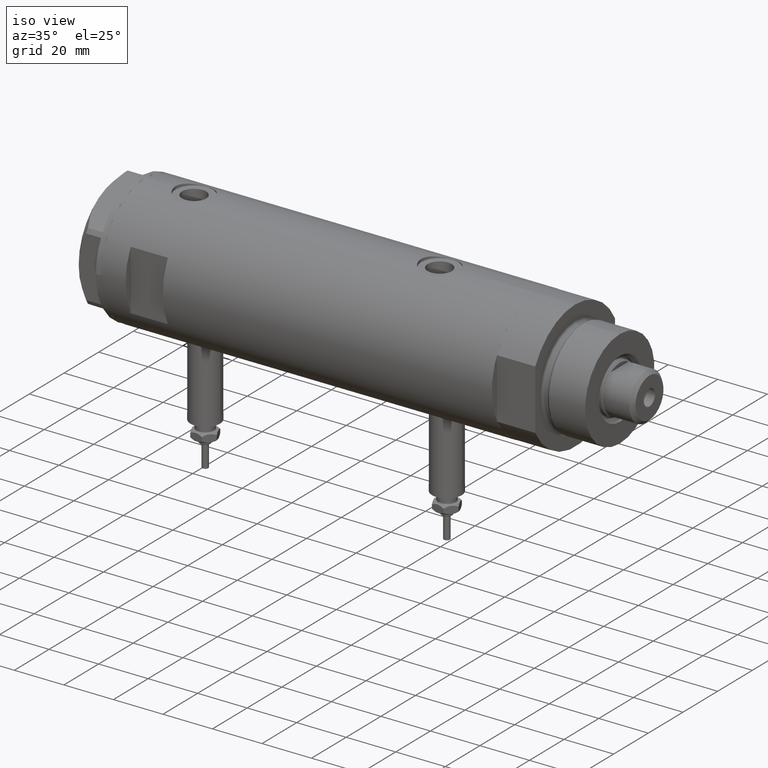
[diagram: clean part render]
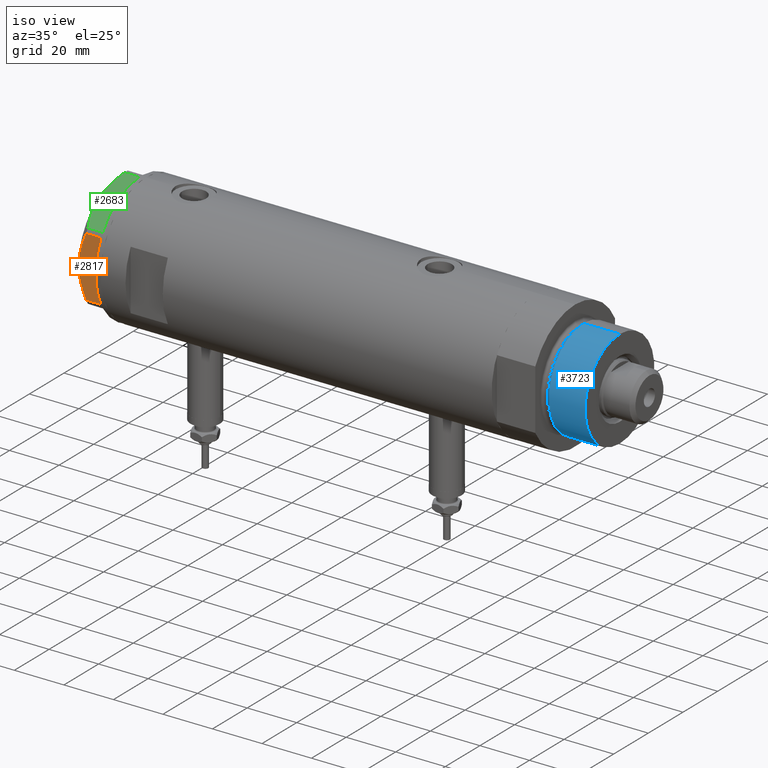
[diagram: same view with three faces highlighted in distinct colors, each labeled with its STEP entity id]
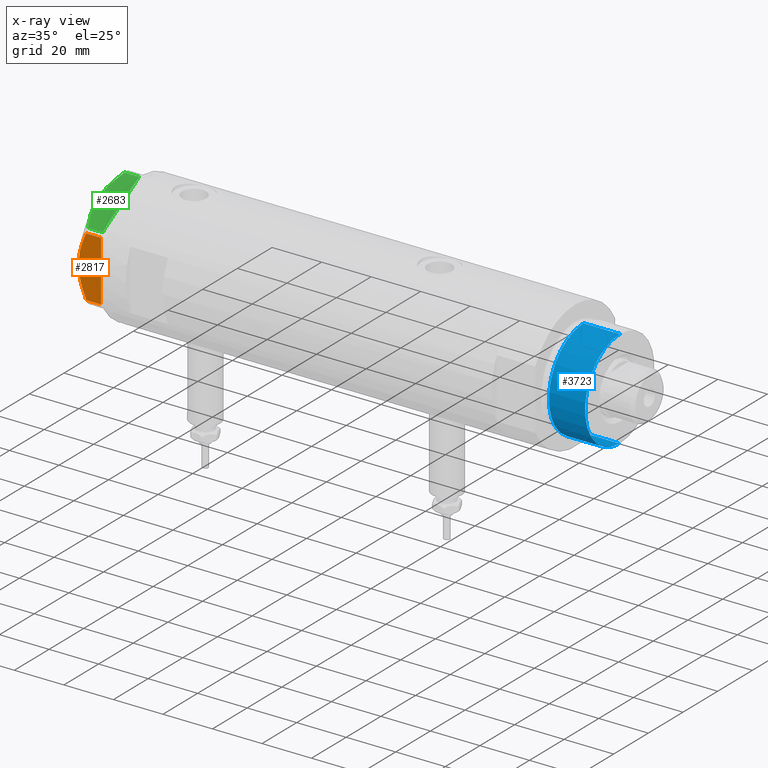
[diagram: x-ray of the same camera — body ghosted, the three highlighted faces saturated]
A machine part, iso view with three faces highlighted in distinct colors.
The next image is the same camera in x-ray (body ghosted, the three faces saturated) — at least one of them is partly hidden behind the body in this view.
Their STEP definitions:

[orange] entity #2817 — the highlighted planar face has unit normal (-0, 1, -0).
#97 = CARTESIAN_POINT ( 'NONE',  ( -23.00000000000004619, -8.112498833180673323E-14, 9.000000000000000000 ) ) ;
#107 = PLANE ( 'NONE',  #1199 ) ;
#333 = CARTESIAN_POINT ( 'NONE',  ( -22.99999999999991118, -10.22738952213794761, 6.832470313674783746 ) ) ;
#401 = CARTESIAN_POINT ( 'NONE',  ( -22.99999999999993960, -2.643615312305158671, 8.854304560636265364 ) ) ;
#437 = EDGE_CURVE ( 'NONE', #5733, #2369, #1512, .T. ) ;
#542 = B_SPLINE_CURVE_WITH_KNOTS ( 'NONE', 3,
 ( #5841, #1806, #2772, #2316, #401, #4841, #4744, #1936, #6289, #1456, #333, #2354, #916, #5731 ),
 .UNSPECIFIED., .F., .F.,
 ( 4, 2, 2, 2, 2, 2, 4 ),
 ( 0.04777139595992690307, 0.04934380568070229761, 0.05091621540147769215, 0.05406103484302848122, 0.05720585428457927030, 0.05877826400535466483, 0.06035067372613005937 ),
 .UNSPECIFIED. ) ;
#593 = CARTESIAN_POINT ( 'NONE',  ( -22.99999999999999289, 12.15905619136133176, 5.983800287807616414 ) ) ;
#594 = CARTESIAN_POINT ( 'NONE',  ( -22.99999999999996803, 7.239756182922199024, 7.892186063422847120 ) ) ;
#626 = ORIENTED_EDGE ( 'NONE', *, *, #437, .T. ) ;
#698 = CARTESIAN_POINT ( 'NONE',  ( -22.99999999999999645, 13.27905619136132032, 9.000000000000000000 ) ) ;
#863 = CARTESIAN_POINT ( 'NONE',  ( -22.99999999999999289, 12.15905619136133176, 0.000000000000000000 ) ) ;
#916 = CARTESIAN_POINT ( 'NONE',  ( -22.99999999999990763, -11.68282849742335827, 6.206372352695425754 ) ) ;
#931 = CARTESIAN_POINT ( 'NONE',  ( -22.99999999999990763, -12.15905619136147564, 5.983800287807627072 ) ) ;
#1018 = CARTESIAN_POINT ( 'NONE',  ( -22.99999999999998224, 8.246028007352361300, 7.571131808646907935 ) ) ;
#1199 = AXIS2_PLACEMENT_3D ( 'NONE', #698, #2655, #4624 ) ;
#1207 = LINE ( 'NONE', #3164, #3452 ) ;
#1244 = DIRECTION ( 'NONE',  ( 0.000000000000000000, 0.000000000000000000, 1.000000000000000000 ) ) ;
#1456 = CARTESIAN_POINT ( 'NONE',  ( -22.99999999999991829, -9.734726261263297431, 7.028924700095662281 ) ) ;
#1477 = CARTESIAN_POINT ( 'NONE',  ( -22.99999999999999645, 13.27905619136132032, 0.000000000000000000 ) ) ;
#1512 = LINE ( 'NONE', #1477, #4887 ) ;
#1530 = CARTESIAN_POINT ( 'NONE',  ( -22.99999999999995381, 2.122900714018063795, 9.000000000000092371 ) ) ;
#1593 = FACE_OUTER_BOUND ( 'NONE', #1597, .T. ) ;
#1597 = EDGE_LOOP ( 'NONE', ( #1635, #2732, #3495, #626, #3661, #3507, #4244 ) ) ;
#1635 = ORIENTED_EDGE ( 'NONE', *, *, #1905, .F. ) ;
#1806 = CARTESIAN_POINT ( 'NONE',  ( -22.99999999999995737, -0.5295934231897764244, 9.000000000000092371 ) ) ;
#1905 = EDGE_CURVE ( 'NONE', #6066, #2083, #5207, .T. ) ;
#1936 = CARTESIAN_POINT ( 'NONE',  ( -22.99999999999992184, -7.253003311474388148, 7.903276810347638737 ) ) ;
#1947 = DIRECTION ( 'NONE',  ( 3.527173405730720141E-15, -1.000000000000000000, 0.000000000000000000 ) ) ;
#2083 = VERTEX_POINT ( 'NONE', #2581 ) ;
#2122 = CARTESIAN_POINT ( 'NONE',  ( -22.99999999999997513, 8.748091966971378142, 7.396818978284571244 ) ) ;
#2192 = CARTESIAN_POINT ( 'NONE',  ( -22.99999999999990763, -12.15905619136147386, 9.000000000000000000 ) ) ;
#2316 = CARTESIAN_POINT ( 'NONE',  ( -22.99999999999993960, -2.119709279061923191, 8.908535212173198659 ) ) ;
#2354 = CARTESIAN_POINT ( 'NONE',  ( -22.99999999999991118, -11.20155944044816287, 6.421102682632757741 ) ) ;
#2369 = VERTEX_POINT ( 'NONE', #5414 ) ;
#2486 = CARTESIAN_POINT ( 'NONE',  ( -22.99999999999998934, 11.20825071633916359, 6.428173306378450746 ) ) ;
#2554 = CARTESIAN_POINT ( 'NONE',  ( -22.99999999999997158, 6.734330413511419700, 8.039389741252668031 ) ) ;
#2581 = CARTESIAN_POINT ( 'NONE',  ( -23.00000000000004619, -8.112498833180673323E-14, 9.000000000000000000 ) ) ;
#2655 = DIRECTION ( 'NONE',  ( 1.000000000000000000, 3.527173405730720141E-15, -0.000000000000000000 ) ) ;
#2676 = LINE ( 'NONE', #2192, #2852 ) ;
#2732 = ORIENTED_EDGE ( 'NONE', *, *, #3615, .T. ) ;
#2772 = CARTESIAN_POINT ( 'NONE',  ( -22.99999999999995026, -1.063773509315737442, 8.981438083606830602 ) ) ;
#2817 = ADVANCED_FACE ( 'NONE', ( #1593 ), #107, .F. ) ;
#2838 = VECTOR ( 'NONE', #1947, 1000.000000000000000 ) ;
#2852 = VECTOR ( 'NONE', #1244, 1000.000000000000000 ) ;
#2879 = DIRECTION ( 'NONE',  ( 3.527173405730720141E-15, -1.000000000000000000, 0.000000000000000000 ) ) ;
#3061 = EDGE_CURVE ( 'NONE', #2369, #5980, #3904, .T. ) ;
#3142 = VECTOR ( 'NONE', #2879, 1000.000000000000000 ) ;
#3164 = CARTESIAN_POINT ( 'NONE',  ( -22.99999999999999289, 12.15905619136133176, 9.000000000000000000 ) ) ;
#3310 = EDGE_CURVE ( 'NONE', #4389, #5733, #6244, .T. ) ;
#3452 = VECTOR ( 'NONE', #6106, 1000.000000000000000 ) ;
#3455 = CARTESIAN_POINT ( 'NONE',  ( -22.99999999999999645, 13.27905619136132032, 0.000000000000000000 ) ) ;
#3495 = ORIENTED_EDGE ( 'NONE', *, *, #3310, .T. ) ;
#3507 = ORIENTED_EDGE ( 'NONE', *, *, #4659, .T. ) ;
#3615 = EDGE_CURVE ( 'NONE', #6066, #4389, #1207, .T. ) ;
#3661 = ORIENTED_EDGE ( 'NONE', *, *, #3061, .T. ) ;
#3868 = CARTESIAN_POINT ( 'NONE',  ( -22.99999999999999289, 12.15905619136133176, 5.983800287807616414 ) ) ;
#3904 = LINE ( 'NONE', #3455, #2838 ) ;
#4024 = CARTESIAN_POINT ( 'NONE',  ( -22.99999999999998579, 10.23890159976122050, 6.840812428290914404 ) ) ;
#4244 = ORIENTED_EDGE ( 'NONE', *, *, #6315, .F. ) ;
#4389 = VERTEX_POINT ( 'NONE', #863 ) ;
#4446 = VERTEX_POINT ( 'NONE', #931 ) ;
#4624 = DIRECTION ( 'NONE',  ( -3.527173405730720141E-15, 1.000000000000000000, 0.000000000000000000 ) ) ;
#4659 = EDGE_CURVE ( 'NONE', #5980, #4446, #2676, .T. ) ;
#4744 = CARTESIAN_POINT ( 'NONE',  ( -22.99999999999992895, -5.228918809624124364, 8.433337033849854336 ) ) ;
#4841 = CARTESIAN_POINT ( 'NONE',  ( -22.99999999999993250, -4.203926054641964782, 8.641681223122507305 ) ) ;
#4887 = VECTOR ( 'NONE', #5532, 1000.000000000000000 ) ;
#4970 = CARTESIAN_POINT ( 'NONE',  ( -22.99999999999996803, 4.194757081058972936, 8.703000351525203016 ) ) ;
#5207 = B_SPLINE_CURVE_WITH_KNOTS ( 'NONE', 3,
 ( #3868, #2486, #4024, #2122, #1018, #594, #2554, #4970, #1530, #97 ),
 .UNSPECIFIED., .F., .F.,
 ( 4, 2, 2, 2, 4 ),
 ( 0.03516523594057416324, 0.03831677594541234300, 0.03989254594783143981, 0.04146831595025052969, 0.04777139595992690307 ),
 .UNSPECIFIED. ) ;
#5326 = CARTESIAN_POINT ( 'NONE',  ( -22.99999999999990763, -12.15905619136147386, 0.000000000000000000 ) ) ;
#5414 = CARTESIAN_POINT ( 'NONE',  ( -22.99999999999990763, -12.12435565298232021, 0.000000000000000000 ) ) ;
#5532 = DIRECTION ( 'NONE',  ( 3.527173405730720141E-15, -1.000000000000000000, 0.000000000000000000 ) ) ;
#5702 = CARTESIAN_POINT ( 'NONE',  ( -22.99999999999999289, 12.12435565298215856, 0.000000000000000000 ) ) ;
#5731 = CARTESIAN_POINT ( 'NONE',  ( -22.99999999999990763, -12.15905619136147564, 5.983800287807627072 ) ) ;
#5733 = VERTEX_POINT ( 'NONE', #5702 ) ;
#5745 = CARTESIAN_POINT ( 'NONE',  ( -22.99999999999999645, 13.27905619136132032, 0.000000000000000000 ) ) ;
#5841 = CARTESIAN_POINT ( 'NONE',  ( -23.00000000000004619, -8.112498833180673323E-14, 9.000000000000000000 ) ) ;
#5980 = VERTEX_POINT ( 'NONE', #5326 ) ;
#6066 = VERTEX_POINT ( 'NONE', #593 ) ;
#6106 = DIRECTION ( 'NONE',  ( 0.000000000000000000, 0.000000000000000000, -1.000000000000000000 ) ) ;
#6244 = LINE ( 'NONE', #5745, #3142 ) ;
#6289 = CARTESIAN_POINT ( 'NONE',  ( -22.99999999999991829, -8.252113629125268801, 7.581642062680223226 ) ) ;
#6315 = EDGE_CURVE ( 'NONE', #2083, #4446, #542, .T. ) ;

[blue] entity #3723 — the highlighted cylindrical surface (partial cylindrical patch) has radius 20 mm, axis along (-1, -0, 0).
#153 = CARTESIAN_POINT ( 'NONE',  ( -19.99999999999999645, 0.000000000000000000, 33.50000000000000000 ) ) ;
#163 = CIRCLE ( 'NONE', #363, 19.99999999999999645 ) ;
#275 = CARTESIAN_POINT ( 'NONE',  ( -19.99999999999999645, 0.000000000000000000, 18.87384048104053846 ) ) ;
#363 = AXIS2_PLACEMENT_3D ( 'NONE', #6263, #5763, #4773 ) ;
#404 = EDGE_LOOP ( 'NONE', ( #4320, #1611, #5549, #4557 ) ) ;
#946 = DIRECTION ( 'NONE',  ( -0.000000000000000000, -0.000000000000000000, -1.000000000000000000 ) ) ;
#1063 = DIRECTION ( 'NONE',  ( -1.000000000000000000, 0.000000000000000000, 0.000000000000000000 ) ) ;
#1083 = EDGE_CURVE ( 'NONE', #4534, #2527, #3742, .T. ) ;
#1283 = DIRECTION ( 'NONE',  ( -0.000000000000000000, -0.000000000000000000, -1.000000000000000000 ) ) ;
#1299 = AXIS2_PLACEMENT_3D ( 'NONE', #5084, #3085, #1063 ) ;
#1359 = EDGE_CURVE ( 'NONE', #2527, #4770, #5210, .T. ) ;
#1611 = ORIENTED_EDGE ( 'NONE', *, *, #1083, .F. ) ;
#2023 = FACE_OUTER_BOUND ( 'NONE', #404, .T. ) ;
#2245 = CARTESIAN_POINT ( 'NONE',  ( 19.99999999999999645, 2.449293598294706119E-15, 33.50000000000000000 ) ) ;
#2261 = EDGE_CURVE ( 'NONE', #3616, #4770, #163, .T. ) ;
#2307 = EDGE_CURVE ( 'NONE', #4534, #3616, #5351, .T. ) ;
#2318 = CARTESIAN_POINT ( 'NONE',  ( -19.99999999999999645, 0.000000000000000000, 33.50000000000000000 ) ) ;
#2527 = VERTEX_POINT ( 'NONE', #3716 ) ;
#2615 = DIRECTION ( 'NONE',  ( 1.000000000000000000, 0.000000000000000000, 0.000000000000000000 ) ) ;
#3085 = DIRECTION ( 'NONE',  ( -0.000000000000000000, -0.000000000000000000, -1.000000000000000000 ) ) ;
#3134 = VECTOR ( 'NONE', #1283, 1000.000000000000000 ) ;
#3616 = VERTEX_POINT ( 'NONE', #275 ) ;
#3679 = DIRECTION ( 'NONE',  ( 0.000000000000000000, 0.000000000000000000, 1.000000000000000000 ) ) ;
#3716 = CARTESIAN_POINT ( 'NONE',  ( 19.99999999999999645, 2.449293598294706119E-15, 33.50000000000000000 ) ) ;
#3723 = ADVANCED_FACE ( 'NONE', ( #2023 ), #5966, .T. ) ;
#3742 = CIRCLE ( 'NONE', #4373, 19.99999999999999645 ) ;
#4320 = ORIENTED_EDGE ( 'NONE', *, *, #1359, .F. ) ;
#4373 = AXIS2_PLACEMENT_3D ( 'NONE', #5673, #3679, #2615 ) ;
#4534 = VERTEX_POINT ( 'NONE', #153 ) ;
#4557 = ORIENTED_EDGE ( 'NONE', *, *, #2261, .T. ) ;
#4770 = VERTEX_POINT ( 'NONE', #5767 ) ;
#4773 = DIRECTION ( 'NONE',  ( 1.000000000000000000, 0.000000000000000000, 0.000000000000000000 ) ) ;
#5084 = CARTESIAN_POINT ( 'NONE',  ( 0.000000000000000000, 0.000000000000000000, 33.50000000000000000 ) ) ;
#5210 = LINE ( 'NONE', #2245, #3134 ) ;
#5351 = LINE ( 'NONE', #2318, #6193 ) ;
#5549 = ORIENTED_EDGE ( 'NONE', *, *, #2307, .T. ) ;
#5673 = CARTESIAN_POINT ( 'NONE',  ( 0.000000000000000000, 0.000000000000000000, 33.50000000000000000 ) ) ;
#5763 = DIRECTION ( 'NONE',  ( -0.000000000000000000, -0.000000000000000000, 1.000000000000000000 ) ) ;
#5767 = CARTESIAN_POINT ( 'NONE',  ( 19.99999999999999645, 2.449293598294706119E-15, 18.87384048104053846 ) ) ;
#5966 = CYLINDRICAL_SURFACE ( 'NONE', #1299, 19.99999999999999645 ) ;
#6193 = VECTOR ( 'NONE', #946, 1000.000000000000000 ) ;
#6263 = CARTESIAN_POINT ( 'NONE',  ( 0.000000000000000000, 0.000000000000000000, 18.87384048104053846 ) ) ;

[green] entity #2683 — the highlighted planar face has unit normal (-0, 0.5, -0.866).
#33 = CARTESIAN_POINT ( 'NONE',  ( -21.99999999999998224, -13.85640646055105485, 0.000000000000000000 ) ) ;
#34 = EDGE_CURVE ( 'NONE', #2530, #5160, #1931, .T. ) ;
#86 = CARTESIAN_POINT ( 'NONE',  ( -2.640413878808339110, -25.03366871902064261, 6.844201024439214187 ) ) ;
#229 = CARTESIAN_POINT ( 'NONE',  ( -22.99999999999990408, -13.27905619136147841, 0.000000000000000000 ) ) ;
#288 = LINE ( 'NONE', #2208, #2408 ) ;
#306 = EDGE_LOOP ( 'NONE', ( #2258, #4163, #3194, #6041, #4706, #4161, #683 ) ) ;
#402 = B_SPLINE_CURVE_WITH_KNOTS ( 'NONE', 3,
 ( #3191, #1647, #3603, #1675, #6137, #5572, #1169, #3123, #5094, #3633 ),
 .UNSPECIFIED., .F., .F.,
 ( 4, 2, 2, 2, 4 ),
 ( 0.001228959670438514989, 0.007497079744270818830, 0.01063113978118697227, 0.01219816979964504812, 0.01376519981810312397 ),
 .UNSPECIFIED. ) ;
#521 = CARTESIAN_POINT ( 'NONE',  ( -5.671686373603866294, -23.28356272816335348, 8.040681765829727823 ) ) ;
#549 = CARTESIAN_POINT ( 'NONE',  ( -4.357207709417335373, -24.04247733877546267, 7.570552255230290406 ) ) ;
#611 = EDGE_CURVE ( 'NONE', #5477, #2238, #288, .T. ) ;
#643 = CARTESIAN_POINT ( 'NONE',  ( -9.678244919010385416, -20.97037507344893115, 9.000000000000088818 ) ) ;
#683 = ORIENTED_EDGE ( 'NONE', *, *, #34, .F. ) ;
#1046 = CARTESIAN_POINT ( 'NONE',  ( -0.9699484522383977625, -25.99811238272274494, 9.000000000000000000 ) ) ;
#1089 = FACE_OUTER_BOUND ( 'NONE', #306, .T. ) ;
#1169 = CARTESIAN_POINT ( 'NONE',  ( -13.34348161667001698, -18.85424967941148822, 8.907842277728438063 ) ) ;
#1181 = DIRECTION ( 'NONE',  ( -0.000000000000000000, 0.000000000000000000, -1.000000000000000000 ) ) ;
#1184 = VECTOR ( 'NONE', #2593, 1000.000000000000000 ) ;
#1401 = LINE ( 'NONE', #6298, #1838 ) ;
#1641 = CARTESIAN_POINT ( 'NONE',  ( -1.799196345398571983, -25.51934588838179607, 6.431317509510369845 ) ) ;
#1647 = CARTESIAN_POINT ( 'NONE',  ( -20.37350567916426058, -14.79546339452094017, 6.877782426143456362 ) ) ;
#1657 = DIRECTION ( 'NONE',  ( 0.4999999999999950595, 0.8660254037844415942, -0.000000000000000000 ) ) ;
#1675 = CARTESIAN_POINT ( 'NONE',  ( -16.05322244309625290, -17.28978008384019915, 8.426899937603781865 ) ) ;
#1838 = VECTOR ( 'NONE', #3803, 1000.000000000000000 ) ;
#1931 = B_SPLINE_CURVE_WITH_KNOTS ( 'NONE', 3,
 ( #3564, #643, #4566, #521, #6038, #549, #2507, #86, #1641, #2026 ),
 .UNSPECIFIED., .F., .F.,
 ( 4, 2, 2, 2, 4 ),
 ( 0.01376519981810312397, 0.01998941321701459134, 0.02154546656674245428, 0.02310151991647032069, 0.02621362661592604310 ),
 .UNSPECIFIED. ) ;
#1984 = EDGE_CURVE ( 'NONE', #2238, #5160, #3962, .T. ) ;
#2026 = CARTESIAN_POINT ( 'NONE',  ( -0.9699484522404678843, -25.99811238272155123, 5.983800287808756835 ) ) ;
#2208 = CARTESIAN_POINT ( 'NONE',  ( -22.99999999999990408, -13.27905619136147841, 0.000000000000000000 ) ) ;
#2238 = VERTEX_POINT ( 'NONE', #3826 ) ;
#2258 = ORIENTED_EDGE ( 'NONE', *, *, #6282, .F. ) ;
#2408 = VECTOR ( 'NONE', #4105, 1000.000000000000000 ) ;
#2471 = EDGE_CURVE ( 'NONE', #6030, #5477, #6060, .T. ) ;
#2507 = CARTESIAN_POINT ( 'NONE',  ( -3.925137811031424562, -24.29193301091729396, 7.397272853992039821 ) ) ;
#2530 = VERTEX_POINT ( 'NONE', #6251 ) ;
#2593 = DIRECTION ( 'NONE',  ( 0.8660254037844415942, -0.4999999999999950595, 0.000000000000000000 ) ) ;
#2683 = ADVANCED_FACE ( 'NONE', ( #1089 ), #5104, .F. ) ;
#2807 = EDGE_CURVE ( 'NONE', #6098, #5688, #4033, .T. ) ;
#2997 = DIRECTION ( 'NONE',  ( 0.000000000000000000, 0.000000000000000000, 1.000000000000000000 ) ) ;
#3106 = CARTESIAN_POINT ( 'NONE',  ( -22.99999999999990408, -13.27905619136147841, 9.000000000000000000 ) ) ;
#3123 = CARTESIAN_POINT ( 'NONE',  ( -12.41906678023023325, -19.38796083407287085, 8.981686407609506873 ) ) ;
#3191 = CARTESIAN_POINT ( 'NONE',  ( -22.03005154776146313, -13.83905619136139364, 5.983800287807550689 ) ) ;
#3194 = ORIENTED_EDGE ( 'NONE', *, *, #5854, .T. ) ;
#3356 = AXIS2_PLACEMENT_3D ( 'NONE', #3106, #1657, #4100 ) ;
#3564 = CARTESIAN_POINT ( 'NONE',  ( -11.49999999999990585, -19.91858428704219364, 9.000000000000000000 ) ) ;
#3603 = CARTESIAN_POINT ( 'NONE',  ( -18.67981377008999644, -15.77331687414923778, 7.629374868826104716 ) ) ;
#3633 = CARTESIAN_POINT ( 'NONE',  ( -11.49999999999990585, -19.91858428704219364, 9.000000000000000000 ) ) ;
#3803 = DIRECTION ( 'NONE',  ( 0.8660254037844415942, -0.4999999999999950595, 0.000000000000000000 ) ) ;
#3826 = CARTESIAN_POINT ( 'NONE',  ( -0.9699484522383943208, -25.99811238272274494, 0.000000000000000000 ) ) ;
#3962 = LINE ( 'NONE', #1046, #5990 ) ;
#4033 = LINE ( 'NONE', #5987, #5513 ) ;
#4100 = DIRECTION ( 'NONE',  ( -0.8660254037844414832, 0.4999999999999950040, 0.000000000000000000 ) ) ;
#4105 = DIRECTION ( 'NONE',  ( 0.8660254037844415942, -0.4999999999999950595, 0.000000000000000000 ) ) ;
#4161 = ORIENTED_EDGE ( 'NONE', *, *, #1984, .T. ) ;
#4163 = ORIENTED_EDGE ( 'NONE', *, *, #2807, .T. ) ;
#4566 = CARTESIAN_POINT ( 'NONE',  ( -7.884645426990268824, -22.00591022298511490, 8.707651728477127762 ) ) ;
#4706 = ORIENTED_EDGE ( 'NONE', *, *, #611, .T. ) ;
#4898 = CARTESIAN_POINT ( 'NONE',  ( -0.9699484522404678843, -25.99811238272155123, 5.983800287808756835 ) ) ;
#5013 = CARTESIAN_POINT ( 'NONE',  ( -0.9999999999997406519, -25.98076211353317433, 0.000000000000000000 ) ) ;
#5094 = CARTESIAN_POINT ( 'NONE',  ( -11.95865151389046588, -19.65378171203314395, 9.000000000000095923 ) ) ;
#5104 = PLANE ( 'NONE',  #3356 ) ;
#5160 = VERTEX_POINT ( 'NONE', #4898 ) ;
#5165 = CARTESIAN_POINT ( 'NONE',  ( -22.03005154776132102, -13.83905619136147536, 0.000000000000000000 ) ) ;
#5477 = VERTEX_POINT ( 'NONE', #5013 ) ;
#5513 = VECTOR ( 'NONE', #1181, 1000.000000000000000 ) ;
#5572 = CARTESIAN_POINT ( 'NONE',  ( -13.80210138309694301, -18.58946543380922378, 8.852712638955804181 ) ) ;
#5688 = VERTEX_POINT ( 'NONE', #5165 ) ;
#5854 = EDGE_CURVE ( 'NONE', #5688, #6030, #1401, .T. ) ;
#5925 = CARTESIAN_POINT ( 'NONE',  ( -22.03005154776146313, -13.83905619136139364, 5.983800287807550689 ) ) ;
#5987 = CARTESIAN_POINT ( 'NONE',  ( -22.03005154776132102, -13.83905619136147536, 9.000000000000000000 ) ) ;
#5990 = VECTOR ( 'NONE', #2997, 1000.000000000000000 ) ;
#6030 = VERTEX_POINT ( 'NONE', #33 ) ;
#6038 = CARTESIAN_POINT ( 'NONE',  ( -5.229981517799206614, -23.53858114556453529, 7.892128867758890998 ) ) ;
#6041 = ORIENTED_EDGE ( 'NONE', *, *, #2471, .T. ) ;
#6060 = LINE ( 'NONE', #229, #1184 ) ;
#6098 = VERTEX_POINT ( 'NONE', #5925 ) ;
#6137 = CARTESIAN_POINT ( 'NONE',  ( -15.16323225988328538, -17.80361615569431777, 8.637313967156948991 ) ) ;
#6251 = CARTESIAN_POINT ( 'NONE',  ( -11.49999999999990585, -19.91858428704219364, 9.000000000000000000 ) ) ;
#6282 = EDGE_CURVE ( 'NONE', #6098, #2530, #402, .T. ) ;
#6298 = CARTESIAN_POINT ( 'NONE',  ( -22.99999999999990408, -13.27905619136147841, 0.000000000000000000 ) ) ;